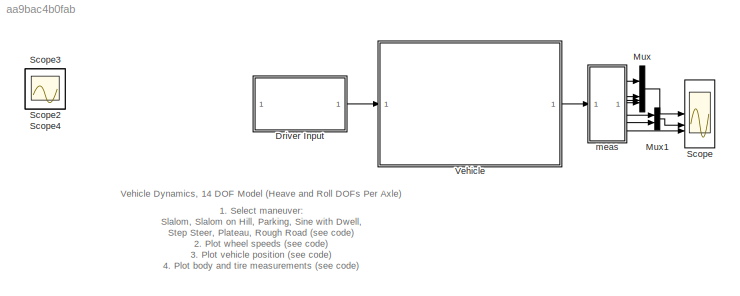
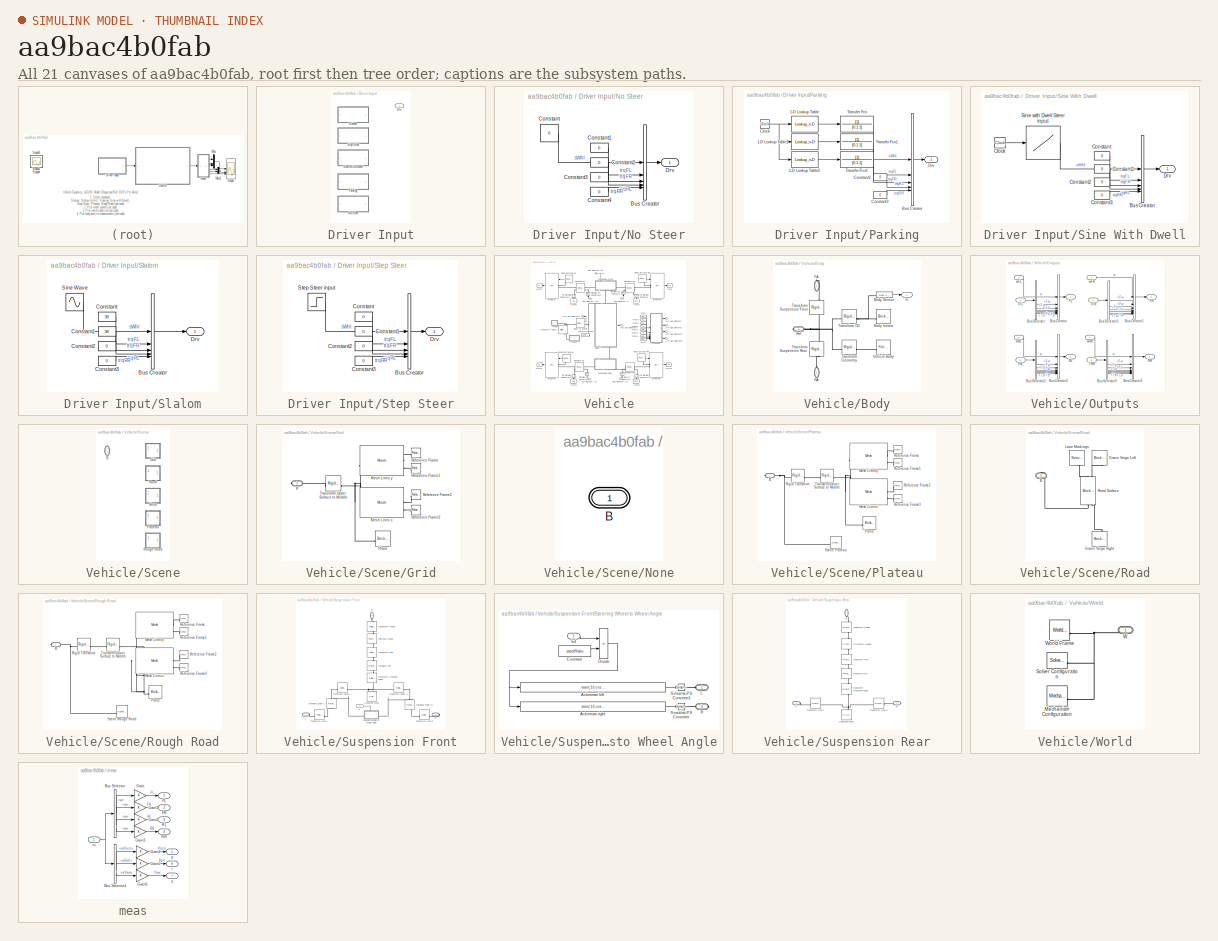
[diagram: thumbnail index - all 21 canvases of the model, root first then tree order]
MODEL slx_aa9bac4b0fab
KIND model
CONFIG AbsTol = 1e-3
CONFIG EnableMultiTasking = on
CONFIG MaxStep = 0.2
CONFIG PostLoadFcn = sm_vehicle_2axle_heave_roll_param\nsm_vehicle_2axle_heave_roll_scene\nsm_vehicle_2axle_heave_roll_config_maneuver(bdroot,VehicleData,'stepsteer');
CONFIG SolverName = ode23t
CONFIG StartFcn = tic
CONFIG StopFcn = Elapsed_Sim_Time = toc;
CONFIG StopTime = 14.2
BLOCK [SubSystem] Driver Input
  LabelModeActiveChoice = StepSteer
  Variant = on
  VariantControlMode = label
BLOCK [Outport] Driver Input/Drv
BLOCK [SubSystem] Driver Input/No Steer
  VariantControl = NoSteer
BLOCK [BusCreator] Driver Input/No Steer/Bus Creator
  DisplayOption = bar
  InheritFromInputs = on
  Inputs = 5
BLOCK [Constant] Driver Input/No Steer/Constant
  Value = 0
BLOCK [Constant] Driver Input/No Steer/Constant1
  Value = 0
BLOCK [Constant] Driver Input/No Steer/Constant2
  Value = 0
BLOCK [Constant] Driver Input/No Steer/Constant3
  Value = 0
BLOCK [Constant] Driver Input/No Steer/Constant4
  Value = 0
BLOCK [Outport] Driver Input/No Steer/Drv
BLOCK [SubSystem] Driver Input/Parking
  VariantControl = Parking
BLOCK [Lookup_n-D] Driver Input/Parking/1-D Lookup Table
  BreakpointsForDimension1 = Maneuver.Parking.Steer.tvec
  InputPortMap = u0
  InternalRulePriority = Speed
  NumberOfTableDimensions = 1
  RndMeth = Simplest
  Table = Maneuver.Parking.Steer.aSteerWheel
BLOCK [Lookup_n-D] Driver Input/Parking/1-D Lookup Table1
  BreakpointsForDimension1 = Maneuver.Parking.Wheel.tvec
  InputPortMap = u0
  InternalRulePriority = Speed
  NumberOfTableDimensions = 1
  RndMeth = Simplest
  Table = Maneuver.Parking.Wheel.trqFL
BLOCK [Lookup_n-D] Driver Input/Parking/1-D Lookup Table2
  BreakpointsForDimension1 = Maneuver.Parking.Wheel.tvec
  InputPortMap = u0
  InternalRulePriority = Speed
  NumberOfTableDimensions = 1
  RndMeth = Simplest
  Table = Maneuver.Parking.Wheel.trqFR
BLOCK [BusCreator] Driver Input/Parking/Bus Creator
  DisplayOption = bar
  InheritFromInputs = on
  Inputs = 5
BLOCK [Clock] Driver Input/Parking/Clock
BLOCK [Constant] Driver Input/Parking/Constant2
  Value = 0
BLOCK [Constant] Driver Input/Parking/Constant3
  Value = 0
BLOCK [Outport] Driver Input/Parking/Drv
BLOCK [TransferFcn] Driver Input/Parking/Transfer Fcn
  Denominator = [0.1 1]
BLOCK [TransferFcn] Driver Input/Parking/Transfer Fcn1
  Denominator = [0.1 1]
BLOCK [TransferFcn] Driver Input/Parking/Transfer Fcn2
  Denominator = [0.1 1]
BLOCK [SubSystem] Driver Input/Sine With Dwell
  VariantControl = SineWithDwell
BLOCK [BusCreator] Driver Input/Sine With Dwell/Bus Creator
  DisplayOption = bar
  InheritFromInputs = on
  Inputs = 5
BLOCK [Clock] Driver Input/Sine With Dwell/Clock
BLOCK [Constant] Driver Input/Sine With Dwell/Constant
  Value = 0
BLOCK [Constant] Driver Input/Sine With Dwell/Constant1
  Value = 0
BLOCK [Constant] Driver Input/Sine With Dwell/Constant2
  Value = 0
BLOCK [Constant] Driver Input/Sine With Dwell/Constant3
  Value = 0
BLOCK [Outport] Driver Input/Sine With Dwell/Drv
BLOCK [Lookup] Driver Input/Sine With Dwell/Sine with Dwell Steer input
  InputValues = Maneuver.SineWithDwell.tvec
  SaturateOnIntegerOverflow = off
  Table = Maneuver.SineWithDwell.aStrWheel
BLOCK [SubSystem] Driver Input/Slalom
  VariantControl = Slalom
BLOCK [BusCreator] Driver Input/Slalom/Bus Creator
  DisplayOption = bar
  InheritFromInputs = on
  Inputs = 5
BLOCK [Constant] Driver Input/Slalom/Constant
  Value = 38
BLOCK [Constant] Driver Input/Slalom/Constant1
  Value = 38
BLOCK [Constant] Driver Input/Slalom/Constant2
  Value = 0
BLOCK [Constant] Driver Input/Slalom/Constant3
  Value = 0
BLOCK [Outport] Driver Input/Slalom/Drv
BLOCK [Sin] Driver Input/Slalom/Sine Wave
  Amplitude = 20*(pi/180)
  Frequency = 4*pi/10
  Phase = pi/2+0.01
  SampleTime = 0
BLOCK [SubSystem] Driver Input/Step Steer
  VariantControl = StepSteer
BLOCK [BusCreator] Driver Input/Step Steer/Bus Creator
  DisplayOption = bar
  InheritFromInputs = on
  Inputs = 5
BLOCK [Constant] Driver Input/Step Steer/Constant
  Value = 0
BLOCK [Constant] Driver Input/Step Steer/Constant1
  Value = 0
BLOCK [Constant] Driver Input/Step Steer/Constant2
  Value = 0
BLOCK [Constant] Driver Input/Step Steer/Constant3
  Value = 0
BLOCK [Outport] Driver Input/Step Steer/Drv
BLOCK [Step] Driver Input/Step Steer/Step Steer input
  FinalValue = 160*pi/180
  SampleTime = 0
  Time = 3
BLOCK [Mux] Mux
  DisplayOption = bar
BLOCK [Mux] Mux1
  DisplayOption = bar
  Inputs = 2
BLOCK [Scope] Scope
  ActiveDisplayYMaximum = 60.82409
  ActiveDisplayYMinimum = 30.90108
  DataLoggingVariableName = ScopeData1
  Floating = off
  GraphicalSettings = {"GraphicalSettings":{"LegacySettings":true,"Style":{"AxesScalingProperties":{"AxesScaling":"Auto"},"Style":{"AxesColor":"[0 0 0]","ChannelNames":["","",""],"ColorOrder":"[1 1 0.0666666666666667;0.0745098039215686 0.623529411764706 1;1 0.411764705882353 0.16078431372549;0.392156862745098 0.831372549019608 0.0745098039215686;0.717647058823529 0.274509803921569 1;0.0588235294117647 1 1;1 0.074509803...<+735ch>
  LayoutDimensionsString = [3 1]
  MultipleDisplayCache = [{"MaxYLimMag":60.82409,"MaxYLimReal":60.82409,"MinYLimMag":30.90108,"MinYLimReal":30.90108,"PlotAsMagnitudePhase":false,"ShowGrid":true,"ShowLegend":true,"Title":"%<SignalLabel>","YLabel":""},{"MaxYLimMag":22.36037,"MaxYLimReal":0.11635,"MinYLimMag":0,"MinYLimReal":-0.01355,"PlotAsMagnitudePhase":false,"ShowGrid":true,"ShowLegend":true,"Title":"%<SignalLabel>","YLabel":""},{"MaxYLimMag":22.36037,...<+161ch>
  NumInputPorts = 3
  ShowLegend = on
  WasSavedAsWebScope = on
BLOCK [Scope] Scope2
  DataLoggingDecimateData = on
  DataLoggingDecimation = 1
  DataLoggingLimitDataPoints = on
  DataLoggingMaxPoints = 7500
  DataLoggingSaveFormat = Array
  Floating = off
  GraphicalSettings = {"GraphicalSettings":{"LegacySettings":true,"Style":{"Style":{"AxesColor":"[0 0 0]","ChannelNames":[""],"ColorOrder":"[1 1 0.0666666666666667;0.0745098039215686 0.623529411764706 1;1 0.411764705882353 0.16078431372549;0.392156862745098 0.831372549019608 0.0745098039215686;0.717647058823529 0.274509803921569 1;0.0588235294117647 1 1;1 0.0745098039215686 0.650980392156863]","CurrentConfiguration":"e...<+343ch>  <repeated x3 — deduplicated; at blocks: Scope2, Scope3, Scope4>
  IOType = viewer
  NumInputPorts = 1
  WasSavedAsWebScope = on
  WindowPosition = [1104 116 324 502]
BLOCK [Scope] Scope3
  DataLoggingDecimateData = on
  DataLoggingDecimation = 1
  DataLoggingLimitDataPoints = on
  DataLoggingMaxPoints = 7500
  DataLoggingSaveFormat = Array
  DataLoggingVariableName = ScopeData1
  Floating = off
  IOType = viewer
  MultipleDisplayCache = [{"MaxYLimMag":10,"MaxYLimReal":10,"MinYLimMag":0,"MinYLimReal":-10,"PlotAsMagnitudePhase":false,"ShowGrid":true,"ShowLegend":true,"Title":"%<SignalLabel>","YLabel":""}]
  NumInputPorts = 1
  ShowLegend = on
  WasSavedAsWebScope = on
  WindowPosition = [744 -24 545 261]
BLOCK [Scope] Scope4
  DataLoggingDecimateData = on
  DataLoggingDecimation = 1
  DataLoggingLimitDataPoints = on
  DataLoggingMaxPoints = 7500
  DataLoggingSaveFormat = Array
  DataLoggingVariableName = ScopeData2
  Floating = off
  IOType = viewer
  NumInputPorts = 1
  WasSavedAsWebScope = on
  WindowPosition = [188 236 324 239]
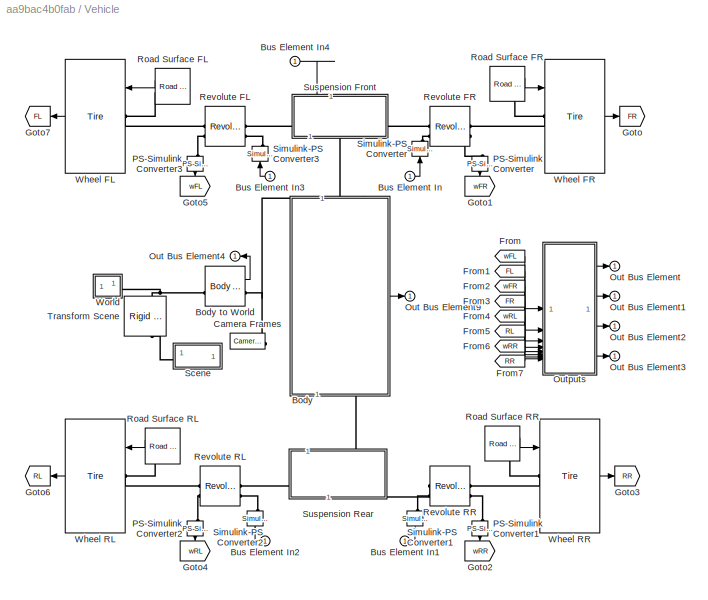
BLOCK [SubSystem] Vehicle
BLOCK [SubSystem] Vehicle/Body
  PortSchema = {"entries":[{"content":{"sides":[{"content":{"connectorIds":["LConn1"]},"type":"ConnectorPlacement.EquallySpacedRectSide","uuid":"a6a40084-0b01-416d-a19a-d775fde84bbf"},{"content":{"connectorIds":["RConn1"],"side":"RIGHT"},"type":"ConnectorPlacement.EquallySpacedRectSide","uuid":"7b527776-1265-46e3-b587-d37cab880183"},{"content":{"connectorIds":["Out1"],"side":"TOP"},"type":"ConnectorPlacement.Equ...<+403ch>
BLOCK [Reference] Vehicle/Body to World  REF=sm_vehicle_utilities_lib/Body to World  (lib defined in slx_7901a99a1966, slx_bde73e06ff5b)
  SourceBlock = sm_vehicle_utilities_lib/Body to World
  SourceType = Body to World
BLOCK [Reference] Vehicle/Body/Body Inertia  REF=sm_lib/Body Elements/Brick Solid
  SourceBlock = sm_lib/Body Elements/Brick Solid
  SourceType = Brick Solid
BLOCK [Reference] Vehicle/Body/Body Sensor  REF=sm_vehicle_utilities_lib/Body Sensor  (lib defined in slx_7901a99a1966, slx_bde73e06ff5b)
  SourceBlock = sm_vehicle_utilities_lib/Body Sensor
  SourceType = Measurements in Body Frame
BLOCK [PMIOPort] Vehicle/Body/FA
  NameLocation = left
  Port = 2
  Side = Right
BLOCK [PMIOPort] Vehicle/Body/RA
  NameLocation = left
  Side = Left
BLOCK [PMIOPort] Vehicle/Body/Ref
  Port = 3
  Side = Right
BLOCK [Reference] Vehicle/Body/Transform CG  REF=sm_lib/Frames and
Transforms/Rigid
Transform
  SourceBlock = sm_lib/Frames and\nTransforms/Rigid\nTransform
  SourceType = Rigid\nTransform
BLOCK [Reference] Vehicle/Body/Transform Geometry  REF=sm_lib/Frames and
Transforms/Rigid
Transform
  SourceBlock = sm_lib/Frames and\nTransforms/Rigid\nTransform
  SourceType = Rigid\nTransform
BLOCK [Reference] Vehicle/Body/Transform Suspension Front  REF=sm_lib/Frames and
Transforms/Rigid
Transform
  NameLocation = left
  SourceBlock = sm_lib/Frames and\nTransforms/Rigid\nTransform
  SourceType = Rigid\nTransform
BLOCK [Reference] Vehicle/Body/Transform Suspension Rear  REF=sm_lib/Frames and
Transforms/Rigid
Transform
  NameLocation = left
  SourceBlock = sm_lib/Frames and\nTransforms/Rigid\nTransform
  SourceType = Rigid\nTransform
BLOCK [Reference] Vehicle/Body/Vehicle Body  REF=sm_lib/Body Elements/File Solid
  SourceBlock = sm_lib/Body Elements/File Solid
  SourceType = File Solid
BLOCK [Outport] Vehicle/Body/m
BLOCK [Inport] Vehicle/Bus Element In
  NameLocation = top
BLOCK [Inport] Vehicle/Bus Element In1
  NameLocation = top
BLOCK [Inport] Vehicle/Bus Element In2
  NameLocation = top
BLOCK [Inport] Vehicle/Bus Element In3
  NameLocation = top
BLOCK [Inport] Vehicle/Bus Element In4
  NameLocation = top
BLOCK [Reference] Vehicle/Camera Frames  REF=sm_vehicle_utilities_lib/Camera Frames  (lib defined in slx_7901a99a1966, slx_bde73e06ff5b)
  SourceBlock = sm_vehicle_utilities_lib/Camera Frames
  SourceType = Camera Frame Definitions
BLOCK [From] Vehicle/From
  GotoTag = wFL
BLOCK [From] Vehicle/From1
  GotoTag = FL
BLOCK [From] Vehicle/From2
  GotoTag = wFR
BLOCK [From] Vehicle/From3
  GotoTag = FR
BLOCK [From] Vehicle/From4
  GotoTag = wRL
BLOCK [From] Vehicle/From5
  GotoTag = RL
BLOCK [From] Vehicle/From6
  GotoTag = wRR
BLOCK [From] Vehicle/From7
  GotoTag = RR
BLOCK [Goto] Vehicle/Goto
  GotoTag = FR
BLOCK [Goto] Vehicle/Goto1
  GotoTag = wFR
  NameLocation = left
BLOCK [Goto] Vehicle/Goto2
  GotoTag = wRR
  NameLocation = left
BLOCK [Goto] Vehicle/Goto3
  GotoTag = RR
BLOCK [Goto] Vehicle/Goto4
  GotoTag = wRL
  NameLocation = left
BLOCK [Goto] Vehicle/Goto5
  GotoTag = wFL
  NameLocation = left
BLOCK [Goto] Vehicle/Goto6
  GotoTag = RL
BLOCK [Goto] Vehicle/Goto7
  GotoTag = FL
BLOCK [Outport] Vehicle/Out Bus Element
BLOCK [Outport] Vehicle/Out Bus Element1
BLOCK [Outport] Vehicle/Out Bus Element2
BLOCK [Outport] Vehicle/Out Bus Element3
BLOCK [Outport] Vehicle/Out Bus Element4
  NameLocation = top
BLOCK [Outport] Vehicle/Out Bus Element9
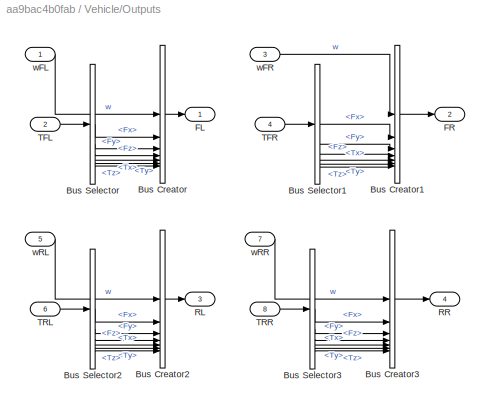
BLOCK [SubSystem] Vehicle/Outputs
BLOCK [BusCreator] Vehicle/Outputs/Bus Creator
  DisplayOption = bar
  InheritFromInputs = on
  Inputs = 7
BLOCK [BusCreator] Vehicle/Outputs/Bus Creator1
  DisplayOption = bar
  InheritFromInputs = on
  Inputs = 7
BLOCK [BusCreator] Vehicle/Outputs/Bus Creator2
  DisplayOption = bar
  InheritFromInputs = on
  Inputs = 7
BLOCK [BusCreator] Vehicle/Outputs/Bus Creator3
  DisplayOption = bar
  InheritFromInputs = on
  Inputs = 7
BLOCK [BusSelector] Vehicle/Outputs/Bus Selector
  OutputSignals = Fx,Fy,Fz,Tx,Ty,Tz
BLOCK [BusSelector] Vehicle/Outputs/Bus Selector1
  OutputSignals = Fx,Fy,Fz,Tx,Ty,Tz
BLOCK [BusSelector] Vehicle/Outputs/Bus Selector2
  OutputSignals = Fx,Fy,Fz,Tx,Ty,Tz
BLOCK [BusSelector] Vehicle/Outputs/Bus Selector3
  OutputSignals = Fx,Fy,Fz,Tx,Ty,Tz
BLOCK [Outport] Vehicle/Outputs/FL
BLOCK [Outport] Vehicle/Outputs/FR
  Port = 2
BLOCK [Outport] Vehicle/Outputs/RL
  Port = 3
BLOCK [Outport] Vehicle/Outputs/RR
  Port = 4
BLOCK [Inport] Vehicle/Outputs/TFL
  Port = 2
BLOCK [Inport] Vehicle/Outputs/TFR
  Port = 4
BLOCK [Inport] Vehicle/Outputs/TRL
  Port = 6
BLOCK [Inport] Vehicle/Outputs/TRR
  Port = 8
BLOCK [Inport] Vehicle/Outputs/wFL
BLOCK [Inport] Vehicle/Outputs/wFR
  Port = 3
BLOCK [Inport] Vehicle/Outputs/wRL
  Port = 5
BLOCK [Inport] Vehicle/Outputs/wRR
  Port = 7
BLOCK [Reference] Vehicle/PS-Simulink Converter  REF=nesl_utility/PS-Simulink
Converter
  NameLocation = right
  SourceBlock = nesl_utility/PS-Simulink\nConverter
  SourceType = PS-Simulink\nConverter
BLOCK [Reference] Vehicle/PS-Simulink Converter1  REF=nesl_utility/PS-Simulink
Converter
  NameLocation = right
  SourceBlock = nesl_utility/PS-Simulink\nConverter
  SourceType = PS-Simulink\nConverter
BLOCK [Reference] Vehicle/PS-Simulink Converter2  REF=nesl_utility/PS-Simulink
Converter
  NameLocation = right
  SourceBlock = nesl_utility/PS-Simulink\nConverter
  SourceType = PS-Simulink\nConverter
BLOCK [Reference] Vehicle/PS-Simulink Converter3  REF=nesl_utility/PS-Simulink
Converter
  NameLocation = right
  SourceBlock = nesl_utility/PS-Simulink\nConverter
  SourceType = PS-Simulink\nConverter
BLOCK [Reference] Vehicle/Revolute FL  REF=sm_lib/Joints/Revolute Joint
  NameLocation = top
  SourceBlock = sm_lib/Joints/Revolute Joint
  SourceType = Revolute Joint
BLOCK [Reference] Vehicle/Revolute FR  REF=sm_lib/Joints/Revolute Joint
  NameLocation = top
  SourceBlock = sm_lib/Joints/Revolute Joint
  SourceType = Revolute Joint
BLOCK [Reference] Vehicle/Revolute RL  REF=sm_lib/Joints/Revolute Joint
  NameLocation = top
  SourceBlock = sm_lib/Joints/Revolute Joint
  SourceType = Revolute Joint
BLOCK [Reference] Vehicle/Revolute RR  REF=sm_lib/Joints/Revolute Joint
  NameLocation = top
  SourceBlock = sm_lib/Joints/Revolute Joint
  SourceType = Revolute Joint
BLOCK [Reference] Vehicle/Road Surface FL  REF=sm_vehicle_utilities_lib/Road Surface  (lib defined in slx_7901a99a1966, slx_bde73e06ff5b)
  AttributesFormatString = %<LabelModeActiveChoice>
  NameLocation = top
  SourceBlock = sm_vehicle_utilities_lib/Road Surface
BLOCK [Reference] Vehicle/Road Surface FR  REF=sm_vehicle_utilities_lib/Road Surface  (lib defined in slx_7901a99a1966, slx_bde73e06ff5b)
  AttributesFormatString = %<LabelModeActiveChoice>
  NameLocation = top
  SourceBlock = sm_vehicle_utilities_lib/Road Surface
BLOCK [Reference] Vehicle/Road Surface RL  REF=sm_vehicle_utilities_lib/Road Surface  (lib defined in slx_7901a99a1966, slx_bde73e06ff5b)
  AttributesFormatString = %<LabelModeActiveChoice>
  NameLocation = top
  SourceBlock = sm_vehicle_utilities_lib/Road Surface
BLOCK [Reference] Vehicle/Road Surface RR  REF=sm_vehicle_utilities_lib/Road Surface  (lib defined in slx_7901a99a1966, slx_bde73e06ff5b)
  AttributesFormatString = %<LabelModeActiveChoice>
  NameLocation = top
  SourceBlock = sm_vehicle_utilities_lib/Road Surface
BLOCK [SubSystem] Vehicle/Scene
  AttributesFormatString = %<LabelModeActiveChoice>
  LabelModeActiveChoice = Grid
  Variant = on
  VariantControlMode = label
BLOCK [PMIOPort] Vehicle/Scene/B
  NameLocation = top
  Side = Right
BLOCK [SubSystem] Vehicle/Scene/Grid
  VariantControl = Grid
BLOCK [PMIOPort] Vehicle/Scene/Grid/B
  Side = Right
BLOCK [Reference] Vehicle/Scene/Grid/Mesh Lines x  REF=sm_vehicle_utilities_lib/Mesh  (lib defined in slx_7901a99a1966, slx_bde73e06ff5b)
  SourceBlock = sm_vehicle_utilities_lib/Mesh
  SourceType = Rectangular Mesh
BLOCK [Reference] Vehicle/Scene/Grid/Mesh Lines y   REF=sm_vehicle_utilities_lib/Mesh  (lib defined in slx_7901a99a1966, slx_bde73e06ff5b)
  SourceBlock = sm_vehicle_utilities_lib/Mesh
  SourceType = Rectangular Mesh
BLOCK [Reference] Vehicle/Scene/Grid/Plane  REF=sm_lib/Body Elements/Brick Solid
  SourceBlock = sm_lib/Body Elements/Brick Solid
  SourceType = Brick Solid
BLOCK [Reference] Vehicle/Scene/Grid/Reference Frame  REF=sm_lib/Frames and
Transforms/Reference
Frame
  NameLocation = top
  SourceBlock = sm_lib/Frames and\nTransforms/Reference\nFrame
  SourceType = Reference\nFrame
BLOCK [Reference] Vehicle/Scene/Grid/Reference Frame1  REF=sm_lib/Frames and
Transforms/Reference
Frame
  NameLocation = top
  SourceBlock = sm_lib/Frames and\nTransforms/Reference\nFrame
  SourceType = Reference\nFrame
BLOCK [Reference] Vehicle/Scene/Grid/Reference Frame2  REF=sm_lib/Frames and
Transforms/Reference
Frame
  NameLocation = top
  SourceBlock = sm_lib/Frames and\nTransforms/Reference\nFrame
  SourceType = Reference\nFrame
BLOCK [Reference] Vehicle/Scene/Grid/Reference Frame3  REF=sm_lib/Frames and
Transforms/Reference
Frame
  SourceBlock = sm_lib/Frames and\nTransforms/Reference\nFrame
  SourceType = Reference\nFrame
BLOCK [Reference] Vehicle/Scene/Grid/Transform Upper Surface to Middle  REF=sm_lib/Frames and
Transforms/Rigid
Transform
  SourceBlock = sm_lib/Frames and\nTransforms/Rigid\nTransform
  SourceType = Rigid\nTransform
BLOCK [SubSystem] Vehicle/Scene/None
  VariantControl = None
BLOCK [PMIOPort] Vehicle/Scene/None/B
  NameLocation = right
  Side = Right
BLOCK [SubSystem] Vehicle/Scene/Plateau
  VariantControl = Plateau
BLOCK [PMIOPort] Vehicle/Scene/Plateau/B
  Side = Right
BLOCK [Reference] Vehicle/Scene/Plateau/Mesh Lines x  REF=sm_vehicle_utilities_lib/Mesh  (lib defined in slx_7901a99a1966, slx_bde73e06ff5b)
  SourceBlock = sm_vehicle_utilities_lib/Mesh
  SourceType = Rectangular Mesh
BLOCK [Reference] Vehicle/Scene/Plateau/Mesh Lines y   REF=sm_vehicle_utilities_lib/Mesh  (lib defined in slx_7901a99a1966, slx_bde73e06ff5b)
  SourceBlock = sm_vehicle_utilities_lib/Mesh
  SourceType = Rectangular Mesh
BLOCK [Reference] Vehicle/Scene/Plateau/Plane  REF=sm_lib/Body Elements/Brick Solid
  SourceBlock = sm_lib/Body Elements/Brick Solid
  SourceType = Brick Solid
BLOCK [Reference] Vehicle/Scene/Plateau/Reference Frame  REF=sm_lib/Frames and
Transforms/Reference
Frame
  NameLocation = top
  SourceBlock = sm_lib/Frames and\nTransforms/Reference\nFrame
  SourceType = Reference\nFrame
BLOCK [Reference] Vehicle/Scene/Plateau/Reference Frame1  REF=sm_lib/Frames and
Transforms/Reference
Frame
  NameLocation = top
  SourceBlock = sm_lib/Frames and\nTransforms/Reference\nFrame
  SourceType = Reference\nFrame
BLOCK [Reference] Vehicle/Scene/Plateau/Reference Frame2  REF=sm_lib/Frames and
Transforms/Reference
Frame
  NameLocation = top
  SourceBlock = sm_lib/Frames and\nTransforms/Reference\nFrame
  SourceType = Reference\nFrame
BLOCK [Reference] Vehicle/Scene/Plateau/Reference Frame3  REF=sm_lib/Frames and
Transforms/Reference
Frame
  SourceBlock = sm_lib/Frames and\nTransforms/Reference\nFrame
  SourceType = Reference\nFrame
BLOCK [Reference] Vehicle/Scene/Plateau/Rigid Transform  REF=sm_lib/Frames and
Transforms/Rigid
Transform
  SourceBlock = sm_lib/Frames and\nTransforms/Rigid\nTransform
  SourceType = Rigid\nTransform
BLOCK [Reference] Vehicle/Scene/Plateau/Scene Plateau  REF=sm_vehicle_utilities_lib/Scene Plateau  (lib defined in slx_7901a99a1966, slx_bde73e06ff5b)
  SourceBlock = sm_vehicle_utilities_lib/Scene Plateau
BLOCK [Reference] Vehicle/Scene/Plateau/Transform Upper Surface to Middle  REF=sm_lib/Frames and
Transforms/Rigid
Transform
  SourceBlock = sm_lib/Frames and\nTransforms/Rigid\nTransform
  SourceType = Rigid\nTransform
BLOCK [SubSystem] Vehicle/Scene/Road
  VariantControl = Road
BLOCK [PMIOPort] Vehicle/Scene/Road/B
  NameLocation = right
  Side = Right
BLOCK [Reference] Vehicle/Scene/Road/Grass Verge Left  REF=sm_lib/Body Elements/Brick Solid
  NameLocation = right
  SourceBlock = sm_lib/Body Elements/Brick Solid
  SourceType = Brick Solid
BLOCK [Reference] Vehicle/Scene/Road/Grass Verge Right  REF=sm_lib/Body Elements/Brick Solid
  NameLocation = right
  SourceBlock = sm_lib/Body Elements/Brick Solid
  SourceType = Brick Solid
BLOCK [Reference] Vehicle/Scene/Road/Lane Markings  REF=sm_lib/Body Elements/Extruded Solid
  NameLocation = left
  SourceBlock = sm_lib/Body Elements/Extruded Solid
  SourceType = Extruded Solid
BLOCK [Reference] Vehicle/Scene/Road/Road Surface  REF=sm_lib/Body Elements/Brick Solid
  NameLocation = left
  SourceBlock = sm_lib/Body Elements/Brick Solid
  SourceType = Brick Solid
BLOCK [SubSystem] Vehicle/Scene/Rough Road
  VariantControl = Rough_Road
BLOCK [PMIOPort] Vehicle/Scene/Rough Road/B
  Side = Right
BLOCK [Reference] Vehicle/Scene/Rough Road/Mesh Lines x  REF=sm_vehicle_utilities_lib/Mesh  (lib defined in slx_7901a99a1966, slx_bde73e06ff5b)
  SourceBlock = sm_vehicle_utilities_lib/Mesh
  SourceType = Rectangular Mesh
BLOCK [Reference] Vehicle/Scene/Rough Road/Mesh Lines y   REF=sm_vehicle_utilities_lib/Mesh  (lib defined in slx_7901a99a1966, slx_bde73e06ff5b)
  SourceBlock = sm_vehicle_utilities_lib/Mesh
  SourceType = Rectangular Mesh
BLOCK [Reference] Vehicle/Scene/Rough Road/Plane  REF=sm_lib/Body Elements/Brick Solid
  SourceBlock = sm_lib/Body Elements/Brick Solid
  SourceType = Brick Solid
BLOCK [Reference] Vehicle/Scene/Rough Road/Reference Frame  REF=sm_lib/Frames and
Transforms/Reference
Frame
  NameLocation = top
  SourceBlock = sm_lib/Frames and\nTransforms/Reference\nFrame
  SourceType = Reference\nFrame
BLOCK [Reference] Vehicle/Scene/Rough Road/Reference Frame1  REF=sm_lib/Frames and
Transforms/Reference
Frame
  NameLocation = top
  SourceBlock = sm_lib/Frames and\nTransforms/Reference\nFrame
  SourceType = Reference\nFrame
BLOCK [Reference] Vehicle/Scene/Rough Road/Reference Frame2  REF=sm_lib/Frames and
Transforms/Reference
Frame
  NameLocation = top
  SourceBlock = sm_lib/Frames and\nTransforms/Reference\nFrame
  SourceType = Reference\nFrame
BLOCK [Reference] Vehicle/Scene/Rough Road/Reference Frame3  REF=sm_lib/Frames and
Transforms/Reference
Frame
  SourceBlock = sm_lib/Frames and\nTransforms/Reference\nFrame
  SourceType = Reference\nFrame
BLOCK [Reference] Vehicle/Scene/Rough Road/Rigid Transform  REF=sm_lib/Frames and
Transforms/Rigid
Transform
  SourceBlock = sm_lib/Frames and\nTransforms/Rigid\nTransform
  SourceType = Rigid\nTransform
BLOCK [Reference] Vehicle/Scene/Rough Road/Scene Rough Road  REF=sm_vehicle_utilities_lib/Scene Plateau  (lib defined in slx_7901a99a1966, slx_bde73e06ff5b)
  SourceBlock = sm_vehicle_utilities_lib/Scene Plateau
BLOCK [Reference] Vehicle/Scene/Rough Road/Transform Upper Surface to Middle  REF=sm_lib/Frames and
Transforms/Rigid
Transform
  SourceBlock = sm_lib/Frames and\nTransforms/Rigid\nTransform
  SourceType = Rigid\nTransform
BLOCK [Reference] Vehicle/Simulink-PS Converter  REF=nesl_utility/Simulink-PS
Converter
  NameLocation = left
  SourceBlock = nesl_utility/Simulink-PS\nConverter
  SourceType = Simulink-PS\nConverter
BLOCK [Reference] Vehicle/Simulink-PS Converter1  REF=nesl_utility/Simulink-PS
Converter
  NameLocation = left
  SourceBlock = nesl_utility/Simulink-PS\nConverter
  SourceType = Simulink-PS\nConverter
BLOCK [Reference] Vehicle/Simulink-PS Converter2  REF=nesl_utility/Simulink-PS
Converter
  NameLocation = left
  SourceBlock = nesl_utility/Simulink-PS\nConverter
  SourceType = Simulink-PS\nConverter
BLOCK [Reference] Vehicle/Simulink-PS Converter3  REF=nesl_utility/Simulink-PS
Converter
  NameLocation = left
  SourceBlock = nesl_utility/Simulink-PS\nConverter
  SourceType = Simulink-PS\nConverter
BLOCK [SubSystem] Vehicle/Suspension Front
  PortSchema = {"entries":[{"content":{"sides":[{"content":{"connectorIds":["LConn1"]},"type":"ConnectorPlacement.EquallySpacedRectSide","uuid":"0af81f34-82de-4f02-a8a7-ec45be82faea"},{"content":{"connectorIds":["In1"],"side":"RIGHT"},"type":"ConnectorPlacement.EquallySpacedRectSide","uuid":"9bc48957-2707-4e2f-b988-a5743aaf8f58"},{"content":{"connectorIds":["LConn2"],"side":"TOP"},"type":"ConnectorPlacement.Equa...<+402ch>
BLOCK [PMIOPort] Vehicle/Suspension Front/B
  NameLocation = left
  Side = Left
BLOCK [PMIOPort] Vehicle/Suspension Front/L
  Port = 2
  Side = Left
BLOCK [Reference] Vehicle/Suspension Front/Prismatic Heave  REF=sm_lib/Joints/Prismatic
Joint
  NameLocation = left
  SourceBlock = sm_lib/Joints/Prismatic\nJoint
  SourceType = Prismatic\nJoint
BLOCK [PMIOPort] Vehicle/Suspension Front/R
  Port = 3
  Side = Right
BLOCK [Reference] Vehicle/Suspension Front/Revolute Roll  REF=sm_lib/Joints/Revolute Joint
  NameLocation = right
  SourceBlock = sm_lib/Joints/Revolute Joint
  SourceType = Revolute Joint
BLOCK [Reference] Vehicle/Suspension Front/Revolute Steer L  REF=sm_lib/Joints/Revolute Joint
  NameLocation = left
  SourceBlock = sm_lib/Joints/Revolute Joint
  SourceType = Revolute Joint
BLOCK [Reference] Vehicle/Suspension Front/Revolute Steer R  REF=sm_lib/Joints/Revolute Joint
  NameLocation = right
  SourceBlock = sm_lib/Joints/Revolute Joint
  SourceType = Revolute Joint
BLOCK [SubSystem] Vehicle/Suspension Front/Steering Wheel to Wheel Angle
  PortSchema = {"entries":[{"content":{"sides":[{"content":{"connectorIds":["LConn1"]},"type":"ConnectorPlacement.EquallySpacedRectSide","uuid":"65a6d75a-79bf-476b-9435-04bcf6c2ef18"},{"content":{"connectorIds":["RConn1"],"side":"RIGHT"},"type":"ConnectorPlacement.EquallySpacedRectSide","uuid":"4d91bb65-021e-4e19-8917-9509e9fd2683"},{"content":{"connectorIds":["In1"],"side":"TOP"},"type":"ConnectorPlacement.Equa...<+250ch>
BLOCK [Fcn] Vehicle/Suspension Front/Steering Wheel to Wheel Angle/Ackerman left
  Expr = atan( 1/( cos(u+eps)/sin(u+eps) - yTrack/(2*wheelbase) ) )
BLOCK [Fcn] Vehicle/Suspension Front/Steering Wheel to Wheel Angle/Ackerman right
  Expr = atan( 1/( cos(u+eps)/sin(u+eps) + yTrack/(2*wheelbase) ) )
BLOCK [Constant] Vehicle/Suspension Front/Steering Wheel to Wheel Angle/Constant
  Value = steerRatio
BLOCK [Product] Vehicle/Suspension Front/Steering Wheel to Wheel Angle/Divide
  Inputs = */
BLOCK [Inport] Vehicle/Suspension Front/Steering Wheel to Wheel Angle/In1
BLOCK [PMIOPort] Vehicle/Suspension Front/Steering Wheel to Wheel Angle/L
  NameLocation = top
  Side = Left
BLOCK [PMIOPort] Vehicle/Suspension Front/Steering Wheel to Wheel Angle/R
  NameLocation = top
  Port = 2
  Side = Right
BLOCK [Reference] Vehicle/Suspension Front/Steering Wheel to Wheel Angle/Simulink-PS Converter  REF=nesl_utility/Simulink-PS
Converter
  NameLocation = top
  SourceBlock = nesl_utility/Simulink-PS\nConverter
  SourceType = Simulink-PS\nConverter
BLOCK [Reference] Vehicle/Suspension Front/Steering Wheel to Wheel Angle/Simulink-PS Converter1  REF=nesl_utility/Simulink-PS
Converter
  NameLocation = top
  SourceBlock = nesl_utility/Simulink-PS\nConverter
  SourceType = Simulink-PS\nConverter
BLOCK [Reference] Vehicle/Suspension Front/Transform Heave  REF=sm_lib/Frames and
Transforms/Rigid
Transform
  NameLocation = left
  SourceBlock = sm_lib/Frames and\nTransforms/Rigid\nTransform
  SourceType = Rigid\nTransform
BLOCK [Reference] Vehicle/Suspension Front/Transform Hub L  REF=sm_lib/Frames and
Transforms/Rigid
Transform
  SourceBlock = sm_lib/Frames and\nTransforms/Rigid\nTransform
  SourceType = Rigid\nTransform
BLOCK [Reference] Vehicle/Suspension Front/Transform Hub R  REF=sm_lib/Frames and
Transforms/Rigid
Transform
  SourceBlock = sm_lib/Frames and\nTransforms/Rigid\nTransform
  SourceType = Rigid\nTransform
BLOCK [Reference] Vehicle/Suspension Front/Transform Roll  REF=sm_lib/Frames and
Transforms/Rigid
Transform
  NameLocation = left
  SourceBlock = sm_lib/Frames and\nTransforms/Rigid\nTransform
  SourceType = Rigid\nTransform
BLOCK [Reference] Vehicle/Suspension Front/Transform Steer L  REF=sm_lib/Frames and
Transforms/Rigid
Transform
  NameLocation = top
  SourceBlock = sm_lib/Frames and\nTransforms/Rigid\nTransform
  SourceType = Rigid\nTransform
BLOCK [Reference] Vehicle/Suspension Front/Transform Steer R  REF=sm_lib/Frames and
Transforms/Rigid
Transform
  NameLocation = top
  SourceBlock = sm_lib/Frames and\nTransforms/Rigid\nTransform
  SourceType = Rigid\nTransform
BLOCK [Reference] Vehicle/Suspension Front/Transform Unspring Mass  REF=sm_lib/Frames and
Transforms/Rigid
Transform
  NameLocation = left
  SourceBlock = sm_lib/Frames and\nTransforms/Rigid\nTransform
  SourceType = Rigid\nTransform
BLOCK [Reference] Vehicle/Suspension Front/Unsprung Mass  REF=sm_lib/Body Elements/Cylindrical Solid
  NameLocation = left
  SourceBlock = sm_lib/Body Elements/Cylindrical Solid
  SourceType = Cylindrical Solid
BLOCK [Inport] Vehicle/Suspension Front/s
BLOCK [SubSystem] Vehicle/Suspension Rear
  PortSchema = {"entries":[{"content":{"sides":[{"content":{"connectorIds":["LConn1"]},"type":"ConnectorPlacement.EquallySpacedRectSide","uuid":"0af81f34-82de-4f02-a8a7-ec45be82faea"},{"content":{"connectorIds":[],"side":"RIGHT"},"type":"ConnectorPlacement.EquallySpacedRectSide","uuid":"9bc48957-2707-4e2f-b988-a5743aaf8f58"},{"content":{"connectorIds":["LConn2"],"side":"TOP"},"type":"ConnectorPlacement.EquallySp...<+397ch>
BLOCK [PMIOPort] Vehicle/Suspension Rear/B
  NameLocation = left
  Side = Left
BLOCK [PMIOPort] Vehicle/Suspension Rear/L
  Port = 2
  Side = Left
BLOCK [Reference] Vehicle/Suspension Rear/Prismatic Heave  REF=sm_lib/Joints/Prismatic
Joint
  NameLocation = left
  SourceBlock = sm_lib/Joints/Prismatic\nJoint
  SourceType = Prismatic\nJoint
BLOCK [PMIOPort] Vehicle/Suspension Rear/R
  Port = 3
  Side = Right
BLOCK [Reference] Vehicle/Suspension Rear/Revolute Roll  REF=sm_lib/Joints/Revolute Joint
  NameLocation = right
  SourceBlock = sm_lib/Joints/Revolute Joint
  SourceType = Revolute Joint
BLOCK [Reference] Vehicle/Suspension Rear/Transform Heave  REF=sm_lib/Frames and
Transforms/Rigid
Transform
  NameLocation = left
  SourceBlock = sm_lib/Frames and\nTransforms/Rigid\nTransform
  SourceType = Rigid\nTransform
BLOCK [Reference] Vehicle/Suspension Rear/Transform Hub L  REF=sm_lib/Frames and
Transforms/Rigid
Transform
  SourceBlock = sm_lib/Frames and\nTransforms/Rigid\nTransform
  SourceType = Rigid\nTransform
BLOCK [Reference] Vehicle/Suspension Rear/Transform Hub R  REF=sm_lib/Frames and
Transforms/Rigid
Transform
  SourceBlock = sm_lib/Frames and\nTransforms/Rigid\nTransform
  SourceType = Rigid\nTransform
BLOCK [Reference] Vehicle/Suspension Rear/Transform Roll  REF=sm_lib/Frames and
Transforms/Rigid
Transform
  NameLocation = left
  SourceBlock = sm_lib/Frames and\nTransforms/Rigid\nTransform
  SourceType = Rigid\nTransform
BLOCK [Reference] Vehicle/Suspension Rear/Transform Unsprung Mass  REF=sm_lib/Frames and
Transforms/Rigid
Transform
  NameLocation = left
  SourceBlock = sm_lib/Frames and\nTransforms/Rigid\nTransform
  SourceType = Rigid\nTransform
BLOCK [Reference] Vehicle/Suspension Rear/Unsprung Mass  REF=sm_lib/Body Elements/Cylindrical Solid
  NameLocation = left
  SourceBlock = sm_lib/Body Elements/Cylindrical Solid
  SourceType = Cylindrical Solid
BLOCK [Reference] Vehicle/Transform Scene  REF=sm_lib/Frames and
Transforms/Rigid
Transform
  NameLocation = left
  SourceBlock = sm_lib/Frames and\nTransforms/Rigid\nTransform
  SourceType = Rigid\nTransform
BLOCK [Reference] Vehicle/Wheel FL  REF=sm_vehicle_utilities_lib/Tire  (lib defined in slx_7901a99a1966, slx_bde73e06ff5b)
  NameLocation = top
  SourceBlock = sm_vehicle_utilities_lib/Tire
  SourceType = Wheel Assembly
BLOCK [Reference] Vehicle/Wheel FR  REF=sm_vehicle_utilities_lib/Tire  (lib defined in slx_7901a99a1966, slx_bde73e06ff5b)
  NameLocation = top
  SourceBlock = sm_vehicle_utilities_lib/Tire
  SourceType = Wheel Assembly
BLOCK [Reference] Vehicle/Wheel RL  REF=sm_vehicle_utilities_lib/Tire  (lib defined in slx_7901a99a1966, slx_bde73e06ff5b)
  NameLocation = top
  SourceBlock = sm_vehicle_utilities_lib/Tire
  SourceType = Wheel Assembly
BLOCK [Reference] Vehicle/Wheel RR  REF=sm_vehicle_utilities_lib/Tire  (lib defined in slx_7901a99a1966, slx_bde73e06ff5b)
  NameLocation = top
  SourceBlock = sm_vehicle_utilities_lib/Tire
  SourceType = Wheel Assembly
BLOCK [SubSystem] Vehicle/World
  NameLocation = top
BLOCK [Reference] Vehicle/World/Mechanism Configuration  REF=sm_lib/Utilities/Mechanism
Configuration
  SourceBlock = sm_lib/Utilities/Mechanism\nConfiguration
  SourceType = Mechanism\nConfiguration
BLOCK [Reference] Vehicle/World/Solver Configuration  REF=nesl_utility/Solver
Configuration
  SourceBlock = nesl_utility/Solver\nConfiguration
  SourceType = Solver\nConfiguration
BLOCK [PMIOPort] Vehicle/World/W
  Side = Right
BLOCK [Reference] Vehicle/World/World Frame  REF=sm_lib/Frames and
Transforms/World Frame
  SourceBlock = sm_lib/Frames and\nTransforms/World Frame
  SourceType = World Frame
BLOCK [SubSystem] meas
BLOCK [BusSelector] meas/Bus Selector
  OutputSignals = TireFL.w,TireFR.w,TireRL.w,TireRR.w
BLOCK [BusSelector] meas/Bus Selector1
  OutputSignals = Body.aPitch,Body.aRoll,World.aYaw
BLOCK [Outport] meas/FL
BLOCK [Outport] meas/FR
  Port = 2
BLOCK [Gain] meas/Gain
BLOCK [Gain] meas/Gain1
BLOCK [Gain] meas/Gain2
BLOCK [Gain] meas/Gain3
BLOCK [Gain] meas/Gain4
BLOCK [Gain] meas/Gain5
BLOCK [Gain] meas/Gain6
BLOCK [Outport] meas/RL
  Port = 3
BLOCK [Outport] meas/RR
  Port = 4
BLOCK [Inport] meas/m
BLOCK [Outport] meas/p
  Port = 5
BLOCK [Outport] meas/r
  Port = 6
BLOCK [Outport] meas/y
  Port = 7
ANNOTATION (root): 1. Select maneuver: Slalom , Slalom on Hill , Parking , Sine with Dwell , Step Steer , Plateau , Rough Road ( see code ) 2. Plot wheel speeds ( see code ) 3. Plot vehicle position ( see code ) 4. Plot body and tire measurements ( see code ) 5. Load vehicle parameters ( code ) 6. Explore simulation results using sscexplore 7. Learn more about this example
ANNOTATION (root): Vehicle Dynamics, 14 DOF Model (Heave and Roll DOFs Per Axle)
LINE Driver Input/No Steer/Bus Creator:1 -> Driver Input/No Steer/Drv:1
LINE Driver Input/No Steer/Constant1:1 -> Driver Input/No Steer/Bus Creator:2
LINE Driver Input/No Steer/Constant2:1 -> Driver Input/No Steer/Bus Creator:3
LINE Driver Input/No Steer/Constant3:1 -> Driver Input/No Steer/Bus Creator:4
LINE Driver Input/No Steer/Constant4:1 -> Driver Input/No Steer/Bus Creator:5
LINE Driver Input/No Steer/Constant:1 -> Driver Input/No Steer/Bus Creator:1
LINE Driver Input/Parking/1-D Lookup Table1:1 -> Driver Input/Parking/Transfer Fcn1:1
LINE Driver Input/Parking/1-D Lookup Table2:1 -> Driver Input/Parking/Transfer Fcn2:1
LINE Driver Input/Parking/1-D Lookup Table:1 -> Driver Input/Parking/Transfer Fcn:1
LINE Driver Input/Parking/Bus Creator:1 -> Driver Input/Parking/Drv:1
NET Driver Input/Parking/Clock:1 -> Driver Input/Parking/1-D Lookup Table1:1, Driver Input/Parking/1-D Lookup Table2:1, Driver Input/Parking/1-D Lookup Table:1
LINE Driver Input/Parking/Constant2:1 -> Driver Input/Parking/Bus Creator:4
LINE Driver Input/Parking/Constant3:1 -> Driver Input/Parking/Bus Creator:5
LINE Driver Input/Parking/Transfer Fcn1:1 -> Driver Input/Parking/Bus Creator:2
LINE Driver Input/Parking/Transfer Fcn2:1 -> Driver Input/Parking/Bus Creator:3
LINE Driver Input/Parking/Transfer Fcn:1 -> Driver Input/Parking/Bus Creator:1
LINE Driver Input/Sine With Dwell/Bus Creator:1 -> Driver Input/Sine With Dwell/Drv:1
LINE Driver Input/Sine With Dwell/Clock:1 -> Driver Input/Sine With Dwell/Sine with Dwell Steer input:1
LINE Driver Input/Sine With Dwell/Constant1:1 -> Driver Input/Sine With Dwell/Bus Creator:3
LINE Driver Input/Sine With Dwell/Constant2:1 -> Driver Input/Sine With Dwell/Bus Creator:4
LINE Driver Input/Sine With Dwell/Constant3:1 -> Driver Input/Sine With Dwell/Bus Creator:5
LINE Driver Input/Sine With Dwell/Constant:1 -> Driver Input/Sine With Dwell/Bus Creator:2
LINE Driver Input/Sine With Dwell/Sine with Dwell Steer input:1 -> Driver Input/Sine With Dwell/Bus Creator:1
LINE Driver Input/Slalom/Bus Creator:1 -> Driver Input/Slalom/Drv:1
LINE Driver Input/Slalom/Constant1:1 -> Driver Input/Slalom/Bus Creator:3
LINE Driver Input/Slalom/Constant2:1 -> Driver Input/Slalom/Bus Creator:4
LINE Driver Input/Slalom/Constant3:1 -> Driver Input/Slalom/Bus Creator:5
LINE Driver Input/Slalom/Constant:1 -> Driver Input/Slalom/Bus Creator:2
LINE Driver Input/Slalom/Sine Wave:1 -> Driver Input/Slalom/Bus Creator:1
LINE Driver Input/Step Steer/Bus Creator:1 -> Driver Input/Step Steer/Drv:1
LINE Driver Input/Step Steer/Constant1:1 -> Driver Input/Step Steer/Bus Creator:3
LINE Driver Input/Step Steer/Constant2:1 -> Driver Input/Step Steer/Bus Creator:4
LINE Driver Input/Step Steer/Constant3:1 -> Driver Input/Step Steer/Bus Creator:5
LINE Driver Input/Step Steer/Constant:1 -> Driver Input/Step Steer/Bus Creator:2
LINE Driver Input/Step Steer/Step Steer input:1 -> Driver Input/Step Steer/Bus Creator:1
LINE Driver Input:1 -> Vehicle:1
LINE Mux1:1 -> Scope:2
LINE Mux:1 -> Scope:1
LINE Vehicle/Body to World:1 -> Vehicle/Out Bus Element4:1
LINE Vehicle/Body/Body Sensor:1 -> Vehicle/Body/m:1
LINE Vehicle/Body:1 -> Vehicle/Out Bus Element9:1
LINE Vehicle/Bus Element In1:1 -> Vehicle/Simulink-PS Converter1:1
LINE Vehicle/Bus Element In2:1 -> Vehicle/Simulink-PS Converter2:1
LINE Vehicle/Bus Element In3:1 -> Vehicle/Simulink-PS Converter3:1
LINE Vehicle/Bus Element In4:1 -> Vehicle/Suspension Front:1
LINE Vehicle/Bus Element In:1 -> Vehicle/Simulink-PS Converter:1
LINE Vehicle/From1:1 -> Vehicle/Outputs:2
LINE Vehicle/From2:1 -> Vehicle/Outputs:3
LINE Vehicle/From3:1 -> Vehicle/Outputs:4
LINE Vehicle/From4:1 -> Vehicle/Outputs:5
LINE Vehicle/From5:1 -> Vehicle/Outputs:6
LINE Vehicle/From6:1 -> Vehicle/Outputs:7
LINE Vehicle/From7:1 -> Vehicle/Outputs:8
LINE Vehicle/From:1 -> Vehicle/Outputs:1
LINE Vehicle/Outputs/Bus Creator1:1 -> Vehicle/Outputs/FR:1
LINE Vehicle/Outputs/Bus Creator2:1 -> Vehicle/Outputs/RL:1
LINE Vehicle/Outputs/Bus Creator3:1 -> Vehicle/Outputs/RR:1
LINE Vehicle/Outputs/Bus Creator:1 -> Vehicle/Outputs/FL:1
LINE Vehicle/Outputs/Bus Selector1:1 -> Vehicle/Outputs/Bus Creator1:2
LINE Vehicle/Outputs/Bus Selector1:2 -> Vehicle/Outputs/Bus Creator1:3
LINE Vehicle/Outputs/Bus Selector1:3 -> Vehicle/Outputs/Bus Creator1:4
LINE Vehicle/Outputs/Bus Selector1:4 -> Vehicle/Outputs/Bus Creator1:5
LINE Vehicle/Outputs/Bus Selector1:5 -> Vehicle/Outputs/Bus Creator1:6
LINE Vehicle/Outputs/Bus Selector1:6 -> Vehicle/Outputs/Bus Creator1:7
LINE Vehicle/Outputs/Bus Selector2:1 -> Vehicle/Outputs/Bus Creator2:2
LINE Vehicle/Outputs/Bus Selector2:2 -> Vehicle/Outputs/Bus Creator2:3
LINE Vehicle/Outputs/Bus Selector2:3 -> Vehicle/Outputs/Bus Creator2:4
LINE Vehicle/Outputs/Bus Selector2:4 -> Vehicle/Outputs/Bus Creator2:5
LINE Vehicle/Outputs/Bus Selector2:5 -> Vehicle/Outputs/Bus Creator2:6
LINE Vehicle/Outputs/Bus Selector2:6 -> Vehicle/Outputs/Bus Creator2:7
LINE Vehicle/Outputs/Bus Selector3:1 -> Vehicle/Outputs/Bus Creator3:2
LINE Vehicle/Outputs/Bus Selector3:2 -> Vehicle/Outputs/Bus Creator3:3
LINE Vehicle/Outputs/Bus Selector3:3 -> Vehicle/Outputs/Bus Creator3:4
LINE Vehicle/Outputs/Bus Selector3:4 -> Vehicle/Outputs/Bus Creator3:5
LINE Vehicle/Outputs/Bus Selector3:5 -> Vehicle/Outputs/Bus Creator3:6
LINE Vehicle/Outputs/Bus Selector3:6 -> Vehicle/Outputs/Bus Creator3:7
LINE Vehicle/Outputs/Bus Selector:1 -> Vehicle/Outputs/Bus Creator:2
LINE Vehicle/Outputs/Bus Selector:2 -> Vehicle/Outputs/Bus Creator:3
LINE Vehicle/Outputs/Bus Selector:3 -> Vehicle/Outputs/Bus Creator:4
LINE Vehicle/Outputs/Bus Selector:4 -> Vehicle/Outputs/Bus Creator:5
LINE Vehicle/Outputs/Bus Selector:5 -> Vehicle/Outputs/Bus Creator:6
LINE Vehicle/Outputs/Bus Selector:6 -> Vehicle/Outputs/Bus Creator:7
LINE Vehicle/Outputs/TFL:1 -> Vehicle/Outputs/Bus Selector:1
LINE Vehicle/Outputs/TFR:1 -> Vehicle/Outputs/Bus Selector1:1
LINE Vehicle/Outputs/TRL:1 -> Vehicle/Outputs/Bus Selector2:1
LINE Vehicle/Outputs/TRR:1 -> Vehicle/Outputs/Bus Selector3:1
LINE Vehicle/Outputs/wFL:1 -> Vehicle/Outputs/Bus Creator:1
LINE Vehicle/Outputs/wFR:1 -> Vehicle/Outputs/Bus Creator1:1
LINE Vehicle/Outputs/wRL:1 -> Vehicle/Outputs/Bus Creator2:1
LINE Vehicle/Outputs/wRR:1 -> Vehicle/Outputs/Bus Creator3:1
LINE Vehicle/Outputs:1 -> Vehicle/Out Bus Element:1
LINE Vehicle/Outputs:2 -> Vehicle/Out Bus Element1:1
LINE Vehicle/Outputs:3 -> Vehicle/Out Bus Element2:1
LINE Vehicle/Outputs:4 -> Vehicle/Out Bus Element3:1
LINE Vehicle/PS-Simulink Converter1:1 -> Vehicle/Goto2:1
LINE Vehicle/PS-Simulink Converter2:1 -> Vehicle/Goto4:1
LINE Vehicle/PS-Simulink Converter3:1 -> Vehicle/Goto5:1
LINE Vehicle/PS-Simulink Converter:1 -> Vehicle/Goto1:1
LINE Vehicle/Road Surface FL:1 -> Vehicle/Wheel FL:1
LINE Vehicle/Road Surface FR:1 -> Vehicle/Wheel FR:1
LINE Vehicle/Road Surface RL:1 -> Vehicle/Wheel RL:1
LINE Vehicle/Road Surface RR:1 -> Vehicle/Wheel RR:1
LINE Vehicle/Suspension Front/Steering Wheel to Wheel Angle/Ackerman left:1 -> Vehicle/Suspension Front/Steering Wheel to Wheel Angle/Simulink-PS Converter1:1
LINE Vehicle/Suspension Front/Steering Wheel to Wheel Angle/Ackerman right:1 -> Vehicle/Suspension Front/Steering Wheel to Wheel Angle/Simulink-PS Converter:1
LINE Vehicle/Suspension Front/Steering Wheel to Wheel Angle/Constant:1 -> Vehicle/Suspension Front/Steering Wheel to Wheel Angle/Divide:2
NET Vehicle/Suspension Front/Steering Wheel to Wheel Angle/Divide:1 -> Vehicle/Suspension Front/Steering Wheel to Wheel Angle/Ackerman left:1, Vehicle/Suspension Front/Steering Wheel to Wheel Angle/Ackerman right:1
LINE Vehicle/Suspension Front/Steering Wheel to Wheel Angle/In1:1 -> Vehicle/Suspension Front/Steering Wheel to Wheel Angle/Divide:1
LINE Vehicle/Suspension Front/s:1 -> Vehicle/Suspension Front/Steering Wheel to Wheel Angle:1
LINE Vehicle/Wheel FL:1 -> Vehicle/Goto7:1
LINE Vehicle/Wheel FR:1 -> Vehicle/Goto:1
LINE Vehicle/Wheel RL:1 -> Vehicle/Goto6:1
LINE Vehicle/Wheel RR:1 -> Vehicle/Goto3:1
LINE Vehicle:1 -> meas:1
LINE meas/Bus Selector1:1 -> meas/Gain4:1
LINE meas/Bus Selector1:2 -> meas/Gain5:1
LINE meas/Bus Selector1:3 -> meas/Gain6:1
LINE meas/Bus Selector:1 -> meas/Gain:1
LINE meas/Bus Selector:2 -> meas/Gain1:1
LINE meas/Bus Selector:3 -> meas/Gain2:1
LINE meas/Bus Selector:4 -> meas/Gain3:1
LINE meas/Gain1:1 -> meas/FR:1
LINE meas/Gain2:1 -> meas/RL:1
LINE meas/Gain3:1 -> meas/RR:1
LINE meas/Gain4:1 -> meas/p:1
LINE meas/Gain5:1 -> meas/r:1
LINE meas/Gain6:1 -> meas/y:1
LINE meas/Gain:1 -> meas/FL:1
NET meas/m:1 -> meas/Bus Selector1:1, meas/Bus Selector:1
LINE meas:1 -> Mux:1
LINE meas:2 -> Mux:2
LINE meas:3 -> Mux:3
LINE meas:4 -> Mux:4
LINE meas:5 -> Mux1:1
LINE meas:6 -> Mux1:2
LINE meas:7 -> Scope:3
PNET net1: Vehicle/Body to World:LConn1 -- Vehicle/Transform Scene:LConn1 -- Vehicle/World:RConn1
PNET net2: Vehicle/Body to World:RConn1 -- Vehicle/Body:RConn2 -- Vehicle/Camera Frames:RConn1
PNET net3: Vehicle/Body/Body Inertia:RConn1 -- Vehicle/Body/Body Sensor:LConn1 -- Vehicle/Body/Transform CG:RConn1
PLINE Vehicle/Body/FA:RConn1 -- Vehicle/Body/Transform Suspension Front:RConn1
PLINE Vehicle/Body/RA:RConn1 -- Vehicle/Body/Transform Suspension Rear:RConn1
PNET net4: Vehicle/Body/Ref:RConn1 -- Vehicle/Body/Transform CG:LConn1 -- Vehicle/Body/Transform Geometry:LConn1 -- Vehicle/Body/Transform Suspension Front:LConn1 -- Vehicle/Body/Transform Suspension Rear:LConn1
PLINE Vehicle/Body/Transform Geometry:RConn1 -- Vehicle/Body/Vehicle Body:RConn1
PLINE Vehicle/Body:LConn1 -- Vehicle/Suspension Rear:LConn1
PLINE Vehicle/Body:RConn1 -- Vehicle/Suspension Front:LConn1
PLINE Vehicle/PS-Simulink Converter1:LConn1 -- Vehicle/Revolute RR:RConn2
PLINE Vehicle/PS-Simulink Converter2:LConn1 -- Vehicle/Revolute RL:RConn2
PLINE Vehicle/PS-Simulink Converter3:LConn1 -- Vehicle/Revolute FL:RConn2
PLINE Vehicle/PS-Simulink Converter:LConn1 -- Vehicle/Revolute FR:RConn2
PLINE Vehicle/Revolute FL:LConn1 -- Vehicle/Suspension Front:LConn2
PLINE Vehicle/Revolute FL:LConn2 -- Vehicle/Simulink-PS Converter3:RConn1
PNET net5: Vehicle/Revolute FL:RConn1 -- Vehicle/Road Surface FL:RConn1 -- Vehicle/Wheel FL:LConn1
PLINE Vehicle/Revolute FR:LConn1 -- Vehicle/Suspension Front:RConn1
PLINE Vehicle/Revolute FR:LConn2 -- Vehicle/Simulink-PS Converter:RConn1
PNET net6: Vehicle/Revolute FR:RConn1 -- Vehicle/Road Surface FR:RConn1 -- Vehicle/Wheel FR:LConn1
PLINE Vehicle/Revolute RL:LConn1 -- Vehicle/Suspension Rear:LConn2
PLINE Vehicle/Revolute RL:LConn2 -- Vehicle/Simulink-PS Converter2:RConn1
PNET net7: Vehicle/Revolute RL:RConn1 -- Vehicle/Road Surface RL:RConn1 -- Vehicle/Wheel RL:LConn1
PLINE Vehicle/Revolute RR:LConn1 -- Vehicle/Suspension Rear:RConn1
PLINE Vehicle/Revolute RR:LConn2 -- Vehicle/Simulink-PS Converter1:RConn1
PNET net8: Vehicle/Revolute RR:RConn1 -- Vehicle/Road Surface RR:RConn1 -- Vehicle/Wheel RR:LConn1
PLINE Vehicle/Scene/Grid/B:RConn1 -- Vehicle/Scene/Grid/Transform Upper Surface to Middle:LConn1
PNET net9: Vehicle/Scene/Grid/Mesh Lines x:LConn1 -- Vehicle/Scene/Grid/Mesh Lines y :LConn1 -- Vehicle/Scene/Grid/Plane:RConn1 -- Vehicle/Scene/Grid/Transform Upper Surface to Middle:RConn1
PLINE Vehicle/Scene/Grid/Mesh Lines x:RConn1 -- Vehicle/Scene/Grid/Reference Frame2:RConn1
PLINE Vehicle/Scene/Grid/Mesh Lines x:RConn2 -- Vehicle/Scene/Grid/Reference Frame3:RConn1
PLINE Vehicle/Scene/Grid/Mesh Lines y :RConn1 -- Vehicle/Scene/Grid/Reference Frame:RConn1
PLINE Vehicle/Scene/Grid/Mesh Lines y :RConn2 -- Vehicle/Scene/Grid/Reference Frame1:RConn1
PNET net10: Vehicle/Scene/Plateau/B:RConn1 -- Vehicle/Scene/Plateau/Rigid Transform:LConn1 -- Vehicle/Scene/Plateau/Scene Plateau:LConn1
PNET net11: Vehicle/Scene/Plateau/Mesh Lines x:LConn1 -- Vehicle/Scene/Plateau/Mesh Lines y :LConn1 -- Vehicle/Scene/Plateau/Plane:RConn1 -- Vehicle/Scene/Plateau/Transform Upper Surface to Middle:RConn1
PLINE Vehicle/Scene/Plateau/Mesh Lines x:RConn1 -- Vehicle/Scene/Plateau/Reference Frame2:RConn1
PLINE Vehicle/Scene/Plateau/Mesh Lines x:RConn2 -- Vehicle/Scene/Plateau/Reference Frame3:RConn1
PLINE Vehicle/Scene/Plateau/Mesh Lines y :RConn1 -- Vehicle/Scene/Plateau/Reference Frame:RConn1
PLINE Vehicle/Scene/Plateau/Mesh Lines y :RConn2 -- Vehicle/Scene/Plateau/Reference Frame1:RConn1
PLINE Vehicle/Scene/Plateau/Rigid Transform:RConn1 -- Vehicle/Scene/Plateau/Transform Upper Surface to Middle:LConn1
PLINE Vehicle/Scene/Road/B:RConn1 -- Vehicle/Scene/Road/Road Surface:LConn1
PLINE Vehicle/Scene/Road/Grass Verge Left:LConn1 -- Vehicle/Scene/Road/Road Surface:RConn2
PLINE Vehicle/Scene/Road/Grass Verge Right:LConn1 -- Vehicle/Scene/Road/Road Surface:LConn2
PLINE Vehicle/Scene/Road/Lane Markings:LConn1 -- Vehicle/Scene/Road/Road Surface:RConn1
PNET net12: Vehicle/Scene/Rough Road/B:RConn1 -- Vehicle/Scene/Rough Road/Rigid Transform:LConn1 -- Vehicle/Scene/Rough Road/Scene Rough Road:LConn1
PNET net13: Vehicle/Scene/Rough Road/Mesh Lines x:LConn1 -- Vehicle/Scene/Rough Road/Mesh Lines y :LConn1 -- Vehicle/Scene/Rough Road/Plane:RConn1 -- Vehicle/Scene/Rough Road/Transform Upper Surface to Middle:RConn1
PLINE Vehicle/Scene/Rough Road/Mesh Lines x:RConn1 -- Vehicle/Scene/Rough Road/Reference Frame2:RConn1
PLINE Vehicle/Scene/Rough Road/Mesh Lines x:RConn2 -- Vehicle/Scene/Rough Road/Reference Frame3:RConn1
PLINE Vehicle/Scene/Rough Road/Mesh Lines y :RConn1 -- Vehicle/Scene/Rough Road/Reference Frame:RConn1
PLINE Vehicle/Scene/Rough Road/Mesh Lines y :RConn2 -- Vehicle/Scene/Rough Road/Reference Frame1:RConn1
PLINE Vehicle/Scene/Rough Road/Rigid Transform:RConn1 -- Vehicle/Scene/Rough Road/Transform Upper Surface to Middle:LConn1
PLINE Vehicle/Scene:RConn1 -- Vehicle/Transform Scene:RConn1
PLINE Vehicle/Suspension Front/B:RConn1 -- Vehicle/Suspension Front/Transform Heave:LConn1
PLINE Vehicle/Suspension Front/L:RConn1 -- Vehicle/Suspension Front/Transform Hub L:RConn1
PLINE Vehicle/Suspension Front/Prismatic Heave:LConn1 -- Vehicle/Suspension Front/Transform Heave:RConn1
PLINE Vehicle/Suspension Front/Prismatic Heave:RConn1 -- Vehicle/Suspension Front/Transform Roll:LConn1
PLINE Vehicle/Suspension Front/R:RConn1 -- Vehicle/Suspension Front/Transform Hub R:RConn1
PLINE Vehicle/Suspension Front/Revolute Roll:LConn1 -- Vehicle/Suspension Front/Transform Unspring Mass:LConn1
PLINE Vehicle/Suspension Front/Revolute Roll:RConn1 -- Vehicle/Suspension Front/Transform Roll:RConn1
PLINE Vehicle/Suspension Front/Revolute Steer L:LConn1 -- Vehicle/Suspension Front/Transform Steer L:RConn1
PLINE Vehicle/Suspension Front/Revolute Steer L:LConn2 -- Vehicle/Suspension Front/Steering Wheel to Wheel Angle:LConn1
PLINE Vehicle/Suspension Front/Revolute Steer L:RConn1 -- Vehicle/Suspension Front/Transform Hub L:LConn1
PLINE Vehicle/Suspension Front/Revolute Steer R:LConn1 -- Vehicle/Suspension Front/Transform Steer R:RConn1
PLINE Vehicle/Suspension Front/Revolute Steer R:LConn2 -- Vehicle/Suspension Front/Steering Wheel to Wheel Angle:RConn1
PLINE Vehicle/Suspension Front/Revolute Steer R:RConn1 -- Vehicle/Suspension Front/Transform Hub R:LConn1
PLINE Vehicle/Suspension Front/Steering Wheel to Wheel Angle/L:RConn1 -- Vehicle/Suspension Front/Steering Wheel to Wheel Angle/Simulink-PS Converter1:RConn1
PLINE Vehicle/Suspension Front/Steering Wheel to Wheel Angle/R:RConn1 -- Vehicle/Suspension Front/Steering Wheel to Wheel Angle/Simulink-PS Converter:RConn1
PNET net14: Vehicle/Suspension Front/Transform Steer L:LConn1 -- Vehicle/Suspension Front/Transform Steer R:LConn1 -- Vehicle/Suspension Front/Transform Unspring Mass:RConn1 -- Vehicle/Suspension Front/Unsprung Mass:RConn1
PLINE Vehicle/Suspension Rear/B:RConn1 -- Vehicle/Suspension Rear/Transform Heave:LConn1
PLINE Vehicle/Suspension Rear/L:RConn1 -- Vehicle/Suspension Rear/Transform Hub L:RConn1
PLINE Vehicle/Suspension Rear/Prismatic Heave:LConn1 -- Vehicle/Suspension Rear/Transform Heave:RConn1
PLINE Vehicle/Suspension Rear/Prismatic Heave:RConn1 -- Vehicle/Suspension Rear/Transform Roll:LConn1
PLINE Vehicle/Suspension Rear/R:RConn1 -- Vehicle/Suspension Rear/Transform Hub R:RConn1
PLINE Vehicle/Suspension Rear/Revolute Roll:LConn1 -- Vehicle/Suspension Rear/Transform Unsprung Mass:LConn1
PLINE Vehicle/Suspension Rear/Revolute Roll:RConn1 -- Vehicle/Suspension Rear/Transform Roll:RConn1
PNET net15: Vehicle/Suspension Rear/Transform Hub L:LConn1 -- Vehicle/Suspension Rear/Transform Hub R:LConn1 -- Vehicle/Suspension Rear/Transform Unsprung Mass:RConn1 -- Vehicle/Suspension Rear/Unsprung Mass:RConn1
PNET net16: Vehicle/World/Mechanism Configuration:RConn1 -- Vehicle/World/Solver Configuration:RConn1 -- Vehicle/World/W:RConn1 -- Vehicle/World/World Frame:RConn1
note: NET lines group one-source signal fan-out (src -> all destinations, sorted); 1:1 wires keep LINE; PNET lines group multi-terminal physical nets as a canonical sorted terminal list (undirected conserving connections); 2-terminal nets keep the pairwise PLINE form
